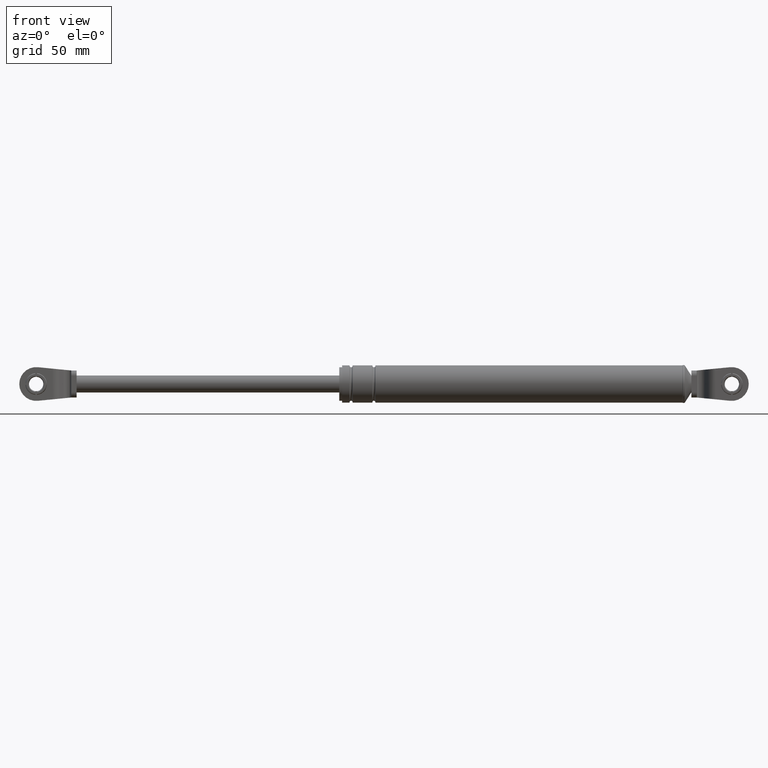
[diagram: clean part render]
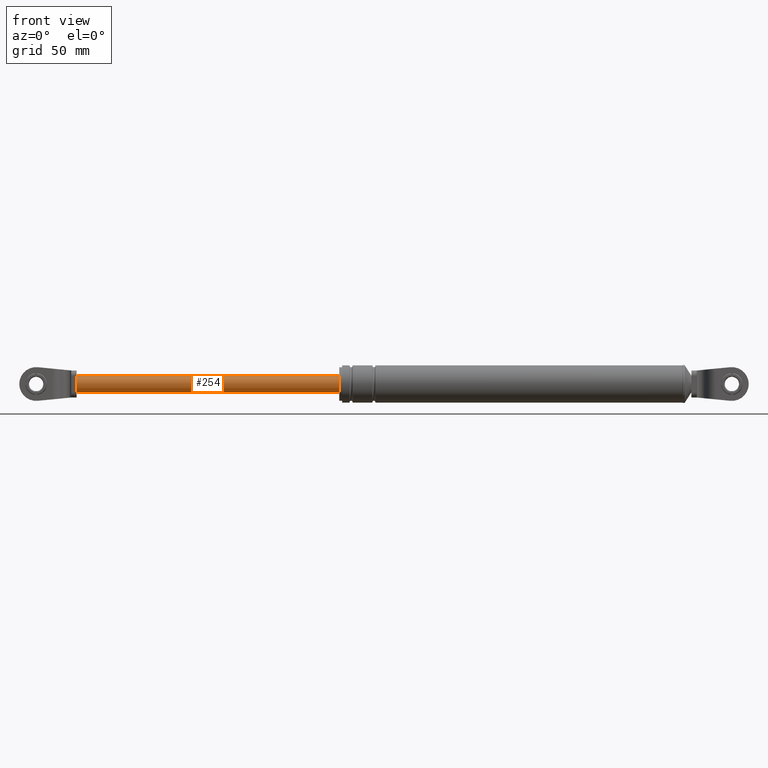
[diagram: same view with one face highlighted and labeled with its STEP entity id]
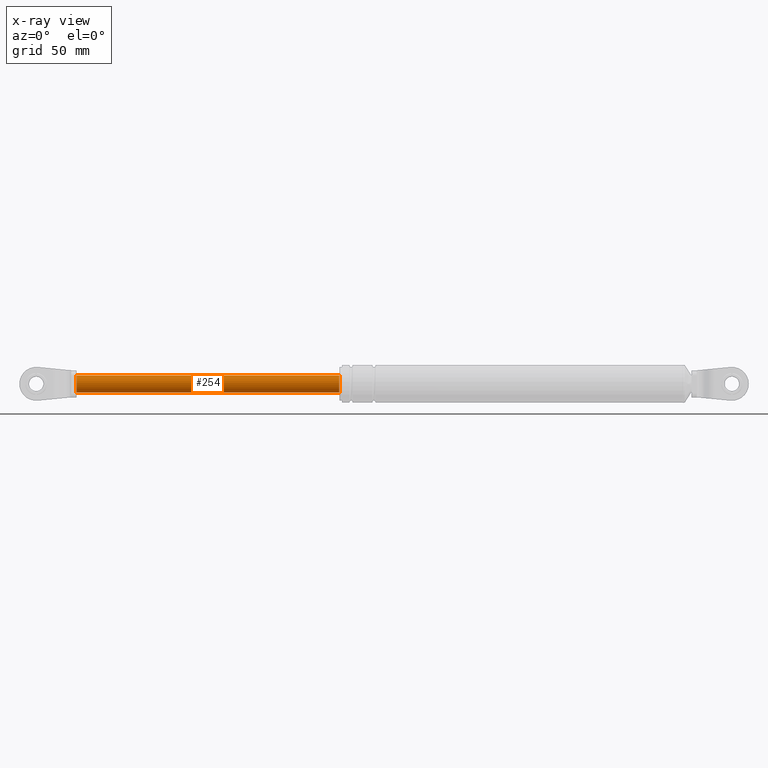
[diagram: x-ray of the same camera — body ghosted, the highlighted face saturated]
A machine part, front view. The second image highlights one B-rep face of the part: STEP entity #254.
The next image is the same camera in x-ray: the body ghosted, the highlighted face saturated — about 0% of this face is hidden behind the body in this view.
In plain terms, the highlighted cylindrical surface (edge-blend (fillet) strip) has radius 5 mm, axis along (1, 0, 0).
Its self-contained STEP definition (entity closure, byte-faithful):
#254=ADVANCED_FACE('',(#1699),#1698,.T.);
#1698=CYLINDRICAL_SURFACE('',#2730,5.00000000000E+000);
#1699=FACE_OUTER_BOUND('',#2731,.T.);
#2727=CARTESIAN_POINT('',(0.00000000000E+000,0.00000000000E+000,1.88977754832E+002));
#2728=DIRECTION('',(1.00000000000E+000,-0.00000000000E+000,-0.00000000000E+000));
#2729=DIRECTION('',(-0.00000000000E+000,-0.00000000000E+000,-1.00000000000E+000));
#2730=AXIS2_PLACEMENT_3D('',#2727,#2728,#2729);
#2731=EDGE_LOOP('',(#3486,#3487,#3488,#3489));
#3486=ORIENTED_EDGE('',*,*,#3794,.F.);
#3487=ORIENTED_EDGE('',*,*,#3902,.T.);
#3488=ORIENTED_EDGE('',*,*,#3771,.T.);
#3489=ORIENTED_EDGE('',*,*,#3903,.F.);
#3771=EDGE_CURVE('',#5413,#5414,#5415,.T.);
#3794=EDGE_CURVE('',#5564,#5571,#5572,.T.);
#3902=EDGE_CURVE('',#5564,#5413,#6280,.T.);
#3903=EDGE_CURVE('',#5571,#5414,#6286,.T.);
#5413=VERTEX_POINT('',#7356);
#5414=VERTEX_POINT('',#7357);
#5415=CIRCLE('',#7361,5.00000000000E+000);
#5564=VERTEX_POINT('',#7451);
#5571=VERTEX_POINT('',#7456);
#5572=CIRCLE('',#7460,5.00000000000E+000);
#6280=(BOUNDED_CURVE() B_SPLINE_CURVE(1,(#7918,#7919),.UNSPECIFIED.,.F.,.F.) B_SPLINE_CURVE_WITH_KNOTS((2,2),(5.69800568743E-002,9.43019942891E-001),.UNSPECIFIED.) CURVE() GEOMETRIC_REPRESENTATION_ITEM() RATIONAL_B_SPLINE_CURVE((1.00000000000E+000,1.00000000000E+000)) REPRESENTATION_ITEM('') );
#6286=(BOUNDED_CURVE() B_SPLINE_CURVE(1,(#7920,#7921),.UNSPECIFIED.,.F.,.F.) B_SPLINE_CURVE_WITH_KNOTS((2,2),(5.69800569801E-002,9.43019943020E-001),.UNSPECIFIED.) CURVE() GEOMETRIC_REPRESENTATION_ITEM() RATIONAL_B_SPLINE_CURVE((7.50000000000E-001,7.50000000000E-001)) REPRESENTATION_ITEM('') );
#7356=CARTESIAN_POINT('',(1.87560362798E+002,2.96059473233E-016,1.83977754832E+002));
#7357=CARTESIAN_POINT('',(1.87560362798E+002,0.00000000000E+000,1.93977754832E+002));
#7358=CARTESIAN_POINT('',(1.87560362798E+002,0.00000000000E+000,1.88977754832E+002));
#7359=DIRECTION('',(-1.00000000000E+000,0.00000000000E+000,0.00000000000E+000));
#7360=DIRECTION('',(0.00000000000E+000,-1.22460635382E-016,1.00000000000E+000));
#7361=AXIS2_PLACEMENT_3D('',#7358,#7359,#7360);
#7451=CARTESIAN_POINT('',(3.20603627980E+001,-4.88676433667E-013,1.83977754832E+002));
#7456=CARTESIAN_POINT('',(3.20603627980E+001,-7.04600016240E-004,1.93977754782E+002));
#7457=CARTESIAN_POINT('',(3.20603627980E+001,0.00000000000E+000,1.88977754832E+002));
#7458=DIRECTION('',(-1.00000000000E+000,0.00000000000E+000,0.00000000000E+000));
#7459=DIRECTION('',(-0.00000000000E+000,6.80000000000E-001,-7.33212111193E-001));
#7460=AXIS2_PLACEMENT_3D('',#7457,#7458,#7459);
#7918=CARTESIAN_POINT('',(3.20603627795E+001,0.00000000000E+000,1.83977754832E+002));
#7919=CARTESIAN_POINT('',(1.87560362775E+002,0.00000000000E+000,1.83977754832E+002));
#7920=CARTESIAN_POINT('',(3.20603627980E+001,-2.96059473233E-016,1.93977754832E+002));
#7921=CARTESIAN_POINT('',(1.87560362798E+002,-2.96059473233E-016,1.93977754832E+002));